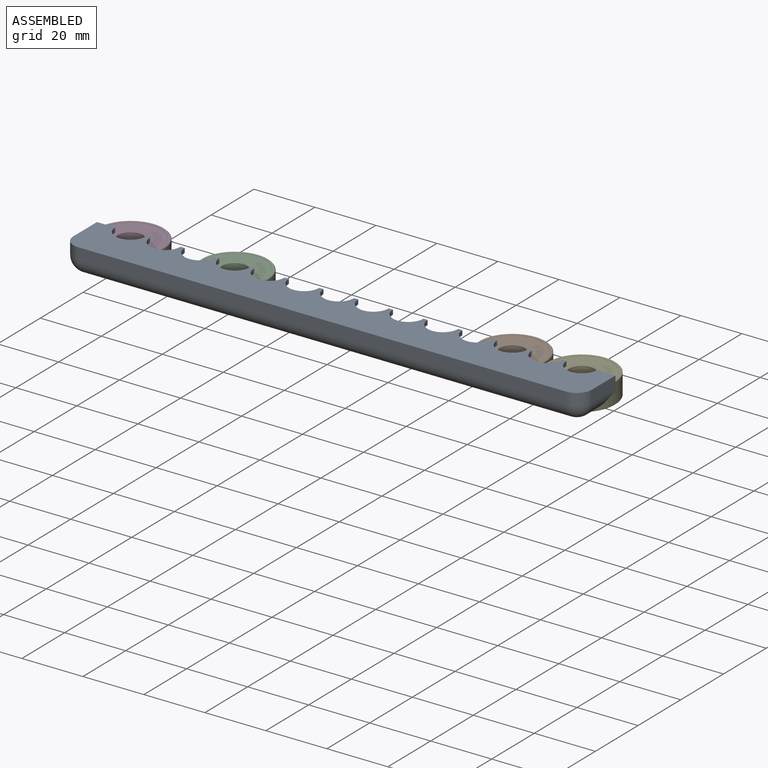
[diagram: assembled view]
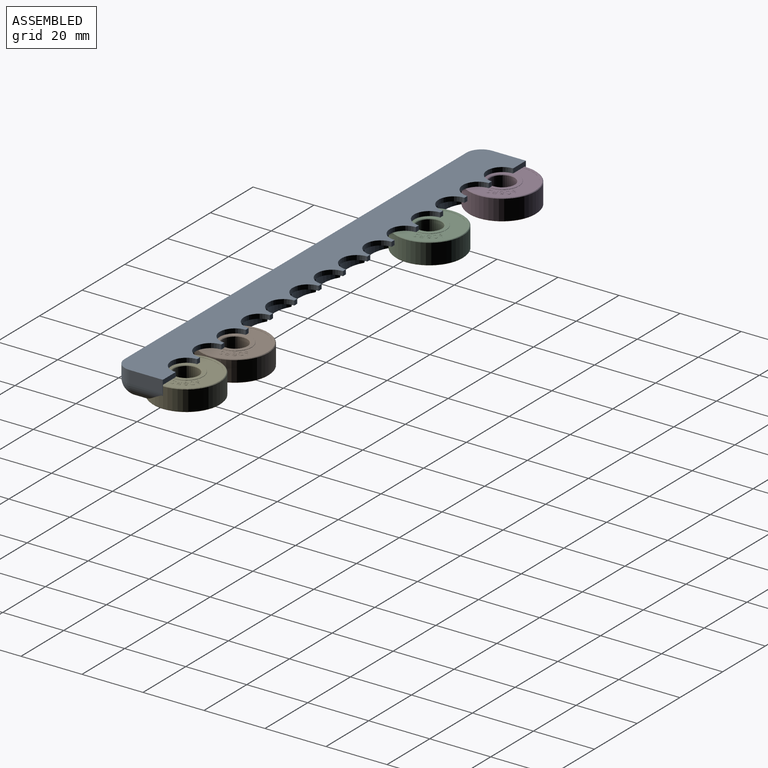
[diagram: assembled view, second angle]
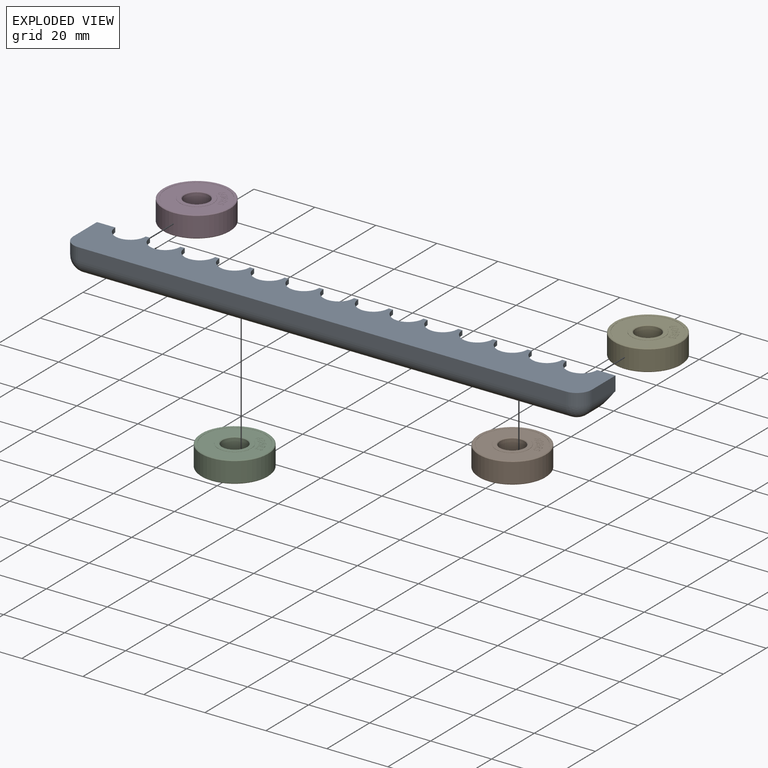
[diagram: exploded view]
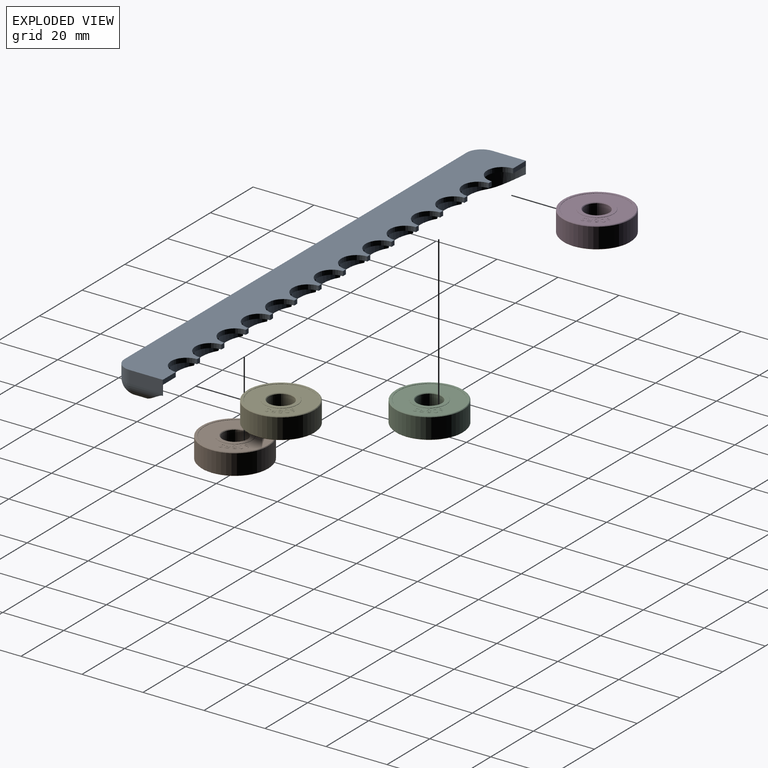
[diagram: exploded view, second angle]
ASSEMBLY  parts=5 mates=4
PART A: 70 faces, bbox 170x16x9 mm
  f0: plane 6x1.78mm, normal (0,0,-1), area 3.4mm2, adj f48,f66,f67
  f1: plane 11.38x1.59mm, normal (0,0,-1), area 5.8mm2, adj f48,f49,f66
  f2: plane 11.38x1.59mm, normal (0,0,-1), area 5.8mm2, adj f49,f50,f66
  f3: plane 11.38x1.59mm, normal (0,0,-1), area 5.8mm2, adj f50,f51,f66
  f4: plane 11.38x1.59mm, normal (0,0,-1), area 5.8mm2, adj f51,f52,f66
  f5: plane 11.38x1.59mm, normal (0,0,-1), area 5.8mm2, adj f52,f53,f66
  f6: plane 11.38x1.59mm, normal (0,0,-1), area 5.8mm2, adj f53,f54,f66
  f7: plane 11.38x1.59mm, normal (0,0,-1), area 5.8mm2, adj f54,f55,f66
  f8: plane 11.38x1.59mm, normal (0,0,-1), area 5.8mm2, adj f55,f56,f66
  f9: plane 11.38x1.59mm, normal (0,0,-1), area 5.8mm2, adj f56,f57,f66
  f10: plane 11.38x1.59mm, normal (0,0,-1), area 5.8mm2, adj f57,f58,f66
  f11: plane 11.38x1.59mm, normal (0,0,-1), area 5.8mm2, adj f58,f59,f66
  f12: plane 11.38x1.59mm, normal (0,0,-1), area 5.8mm2, adj f59,f60,f66
  f13: plane 11.38x1.59mm, normal (0,0,-1), area 5.8mm2, adj f60,f61,f66
  f14: plane 6.06x1.82mm, normal (0,0,-1), area 3.5mm2, adj f61,f64,f66
  f15: cylinder r=5mm len=10mm, axis (0,0,-1), area 23.6mm2, adj f16,f46,f47,f62
  f16: plane 6x1.5mm, normal (0,1,0), area 9mm2, adj f15,f17,f47,f62
  f17: plane 11x4mm, normal (-1,0,0), area 44mm2, adj f16,f47,f48,f67,f69
  f18: plane 160x4mm, normal (0,-1,0), area 640mm2, adj f47,f63,f66,f69
  f19: plane 11x4mm, normal (1,0,0), area 44mm2, adj f20,f47,f63,f64
  f20: plane 6.06x4.77mm, normal (0,1,0), area 9.3mm2, adj f19,f21,f47,f61,f62,f64
  f21: cylinder r=5mm len=10mm, axis (0,0,-1), area 23.6mm2, adj f20,f22,f47,f62
  f22: plane 1.5x1.38mm, normal (0,1,0), area 2.1mm2, adj f21,f23,f47,f62
  f23: cylinder r=5mm len=10mm, axis (0,0,-1), area 23.6mm2, adj f22,f24,f47,f62
  f24: plane 1.5x1.38mm, normal (0,1,0), area 2.1mm2, adj f23,f25,f47,f62
  f25: cylinder r=5mm len=10mm, axis (0,0,-1), area 23.6mm2, adj f24,f26,f47,f62
  f26: plane 1.5x1.38mm, normal (0,1,0), area 2.1mm2, adj f25,f27,f47,f62
  f27: cylinder r=5mm len=10mm, axis (0,0,-1), area 23.6mm2, adj f26,f28,f47,f62
  f28: plane 1.5x1.38mm, normal (0,1,0), area 2.1mm2, adj f27,f29,f47,f62
  f29: cylinder r=5mm len=10mm, axis (0,0,-1), area 23.6mm2, adj f28,f30,f47,f62
  f30: plane 1.5x1.38mm, normal (0,1,0), area 2.1mm2, adj f29,f31,f47,f62
  f31: cylinder r=5mm len=10mm, axis (0,0,-1), area 23.6mm2, adj f30,f32,f47,f62
  f32: plane 1.5x1.38mm, normal (0,1,0), area 2.1mm2, adj f31,f33,f47,f62
  f33: cylinder r=5mm len=10mm, axis (0,0,-1), area 23.6mm2, adj f32,f34,f47,f62
  f34: plane 1.5x1.38mm, normal (0,1,0), area 2.1mm2, adj f33,f35,f47,f62
  f35: cylinder r=5mm len=10mm, axis (0,0,-1), area 23.6mm2, adj f34,f36,f47,f62
  f36: plane 1.5x1.38mm, normal (0,1,0), area 2.1mm2, adj f35,f37,f47,f62
  f37: cylinder r=5mm len=10mm, axis (0,0,-1), area 23.6mm2, adj f36,f38,f47,f62
  f38: plane 1.5x1.38mm, normal (0,1,0), area 2.1mm2, adj f37,f39,f47,f62
  f39: cylinder r=5mm len=10mm, axis (0,0,-1), area 23.6mm2, adj f38,f40,f47,f62
  f40: plane 1.5x1.38mm, normal (0,1,0), area 2.1mm2, adj f39,f41,f47,f62
  f41: cylinder r=5mm len=10mm, axis (0,0,-1), area 23.6mm2, adj f40,f42,f47,f62
  f42: plane 1.5x1.38mm, normal (0,1,0), area 2.1mm2, adj f41,f43,f47,f62
  f43: cylinder r=5mm len=10mm, axis (0,0,-1), area 23.6mm2, adj f42,f44,f47,f62
  f44: plane 1.5x1.38mm, normal (0,1,0), area 2.1mm2, adj f43,f45,f47,f62
  f45: cylinder r=5mm len=10mm, axis (0,0,-1), area 23.6mm2, adj f44,f46,f47,f62
  f46: plane 1.5x1.38mm, normal (0,1,0), area 2.1mm2, adj f15,f45,f47,f62
  f47: plane 170x16mm, normal (0,0,1), area 2159.5mm2, adj f15,f16,f17,f18,f19,f20,f21,f22
  f48: cylinder r=11mm len=16.69mm, axis (0,0,-1), area 153.7mm2, adj f0,f1,f17,f49,f62,f67
  f49: cylinder r=11mm len=11.38mm, axis (0,0,-1), area 89.7mm2, adj f1,f2,f48,f50,f62
  f50: cylinder r=11mm len=11.38mm, axis (0,0,-1), area 89.7mm2, adj f2,f3,f49,f51,f62
  f51: cylinder r=11mm len=11.38mm, axis (0,0,-1), area 89.7mm2, adj f3,f4,f50,f52,f62
  f52: cylinder r=11mm len=11.38mm, axis (0,0,-1), area 89.7mm2, adj f4,f5,f51,f53,f62
  f53: cylinder r=11mm len=11.38mm, axis (0,0,-1), area 89.7mm2, adj f5,f6,f52,f54,f62
  f54: cylinder r=11mm len=11.38mm, axis (0,0,-1), area 89.7mm2, adj f6,f7,f53,f55,f62
  f55: cylinder r=11mm len=11.38mm, axis (0,0,-1), area 89.7mm2, adj f7,f8,f54,f56,f62
  f56: cylinder r=11mm len=11.38mm, axis (0,0,-1), area 89.7mm2, adj f8,f9,f55,f57,f62
  f57: cylinder r=11mm len=11.38mm, axis (0,0,-1), area 89.7mm2, adj f9,f10,f56,f58,f62
  f58: cylinder r=11mm len=11.38mm, axis (0,0,-1), area 89.7mm2, adj f10,f11,f57,f59,f62
  f59: cylinder r=11mm len=11.38mm, axis (0,0,-1), area 89.7mm2, adj f11,f12,f58,f60,f62
  f60: cylinder r=11mm len=11.38mm, axis (0,0,-1), area 89.7mm2, adj f12,f13,f59,f61,f62
  f61: cylinder r=11mm len=16.69mm, axis (0,0,-1), area 155mm2, adj f13,f14,f20,f60,f62,f64
  f62: plane 169.94x11mm, normal (0,0,-1), area 1191.8mm2, adj f15,f16,f20,f21,f22,f23,f24,f25
  f63: cylinder r=5mm len=5mm, axis (0,0,1), area 31.4mm2, adj f18,f19,f47,f65
  f64: cylinder r=5mm len=11mm, axis (0,1,0), area 47.2mm2, adj f14,f19,f20,f61,f65
  f65: sphere r=5mm, area 39.3mm2, adj f63,f64,f66
  f66: cylinder r=5mm len=160mm, axis (1,0,0), area 1256.6mm2, adj f0,f1,f2,f3,f4,f5,f6,f7
  f67: cylinder r=5mm len=11mm, axis (0,-1,0), area 45.7mm2, adj f0,f17,f48,f68
  f68: sphere r=5mm, area 39.3mm2, adj f66,f67,f69
  f69: cylinder r=5mm len=5mm, axis (0,0,-1), area 31.4mm2, adj f17,f18,f47,f68
PART B: 182 faces, bbox 22x7x22 mm
  f0: plane 20x20mm, normal (0,-1,0), area 210.8mm2, adj f8,f9,f101,f102,f103,f104,f105,f106
  f1: plane 20x20mm, normal (0,1,0), area 210.8mm2, adj f10,f11,f20,f21,f22,f23,f24,f25
  f2: plane 10.9x10.9mm, normal (0,1,0), area 37.9mm2, adj f12,f19
  f3: plane 10.9x10.9mm, normal (0,-1,0), area 37.9mm2, adj f13,f16
  f4: plane 21.6x21.6mm, normal (0,-1,0), area 49.1mm2, adj f14,f17
  f5: plane 21.6x21.6mm, normal (0,1,0), area 49.1mm2, adj f15,f18
  f6: cylinder r=11mm len=22mm, axis (0,1,0), area 456.2mm2, adj f14,f15
  f7: cylinder r=4mm len=8mm, axis (0,1,0), area 165.9mm2, adj f12,f13
  f8: cylinder r=10mm len=20mm, axis (0,-1,0), area 3.1mm2, adj f0,f17
  f9: cylinder r=5.5mm len=11mm, axis (0,-1,0), area 1.7mm2, adj f0,f16
  f10: cylinder r=10mm len=20mm, axis (0,-1,0), area 3.1mm2, adj f1,f18
  f11: cylinder r=5.5mm len=11mm, axis (0,-1,0), area 1.7mm2, adj f1,f19
  f12: cone r=4.2mm half-angle=45deg, axis (0,1,0), area 7.3mm2, adj f2,f7
  f13: cone r=4mm half-angle=45deg, axis (0,-1,0), area 7.3mm2, adj f3,f7
  f14: cone r=10.8mm half-angle=45deg, axis (0,1,0), area 19.4mm2, adj f4,f6
  f15: cone r=11mm half-angle=45deg, axis (0,-1,0), area 19.4mm2, adj f5,f6
  f16: cone r=5.45mm half-angle=45deg, axis (0,1,0), area 2.4mm2, adj f3,f9
  f17: cone r=10mm half-angle=45deg, axis (0,-1,0), area 4.5mm2, adj f4,f8
  f18: cone r=10.05mm half-angle=45deg, axis (0,1,0), area 4.5mm2, adj f5,f10
  f19: cone r=5.5mm half-angle=45deg, axis (0,-1,0), area 2.4mm2, adj f2,f11
  f20: extruded ~0.64x0.36mm, area 0mm2, adj f1,f21,f36,f37
  f21: extruded ~0.59x0.51mm, area 0mm2, adj f1,f20,f22,f37
  f22: extruded ~0.59x0.51mm, area 0mm2, adj f1,f21,f23,f37
  f23: cylinder r=4.18mm len=0.28mm, axis (0,1,0), area 0mm2, adj f1,f22,f24,f37
  f24: extruded ~0.24x0.15mm, area 0mm2, adj f1,f23,f25,f37
  f25: extruded ~0.28x0.25mm, area 0mm2, adj f1,f24,f26,f37
  f26: extruded ~0.38x0.21mm, area 0mm2, adj f1,f25,f27,f37
  f27: plane 0.15x0.14mm, normal (0.73,0,-0.68), area 0mm2, adj f1,f26,f28,f37
  f28: extruded ~0.55x0.27mm, area 0mm2, adj f1,f27,f29,f37
  f29: extruded ~0.51x0.43mm, area 0mm2, adj f1,f28,f30,f37
  f30: cylinder r=0.5mm len=0.29mm, axis (0,-1,0), area 0mm2, adj f1,f29,f31,f37
  f31: extruded ~0.33x0.24mm, area 0mm2, adj f1,f30,f32,f37
  f32: extruded ~0.37x0.28mm, area 0mm2, adj f1,f31,f33,f37
  f33: cylinder r=0.34mm len=0.19mm, axis (0,1,0), area 0mm2, adj f1,f32,f34,f37
  f34: extruded ~0.37x0.33mm, area 0mm2, adj f1,f33,f35,f37
  f35: extruded ~0.44x0.29mm, area 0mm2, adj f1,f34,f36,f37
  f36: plane 0.16x0.12mm, normal (-0.8,0,0.6), area 0mm2, adj f1,f20,f35,f37
  f37: plane 2.08x1.14mm, normal (0,1,0), area 0.8mm2, adj f20,f21,f22,f23,f24,f25,f26,f27
  f38: plane 2.13x1.84mm, normal (0,1,0), area 1.1mm2, adj f39,f40,f41,f42,f43,f44,f45,f46
  f39: plane 1.88x0.64mm, normal (0.32,0,0.95), area 0.1mm2, adj f1,f38,f40,f49
  f40: plane 0.19x0.06mm, normal (0.95,0,-0.32), area 0mm2, adj f1,f38,f39,f41
  f41: plane 0.87x0.3mm, normal (-0.32,0,-0.95), area 0mm2, adj f1,f38,f40,f42
  f42: plane 0.11x0.05mm, normal (0.95,0,-0.32), area 0mm2, adj f1,f38,f41,f43
  f43: plane 0.97x0.65mm, normal (0.83,0,0.55), area 0.1mm2, adj f1,f38,f42,f44
  f44: plane 0.23x0.08mm, normal (0.95,0,-0.32), area 0mm2, adj f1,f38,f43,f45
  f45: plane 0.97x0.64mm, normal (-0.83,0,-0.55), area 0.1mm2, adj f1,f38,f44,f46
  f46: extruded ~0.73x0.51mm, area 0mm2, adj f1,f38,f45,f47
  f47: extruded ~0.54x0.35mm, area 0mm2, adj f1,f38,f46,f48
  f48: extruded ~0.43x0.12mm, area 0mm2, adj f1,f38,f47,f49
  f49: plane 0.37x0.13mm, normal (-0.95,0,0.32), area 0mm2, adj f1,f38,f39,f48
  f50: plane 0.33x0.11mm, normal (0.95,0,-0.32), area 0mm2, adj f38,f51,f54,f55
  f51: plane 0.64x0.22mm, normal (-0.32,0,-0.95), area 0mm2, adj f38,f50,f52,f55
  f52: plane 0.32x0.11mm, normal (-0.95,0,0.31), area 0mm2, adj f38,f51,f53,f55
  f53: extruded ~0.48x0.38mm, area 0mm2, adj f38,f52,f54,f55
  f54: extruded ~0.57x0.22mm, area 0mm2, adj f38,f50,f53,f55
  f55: plane 0.92x0.81mm, normal (0,1,0), area 0.5mm2, adj f50,f51,f52,f53,f54
  f56: plane 1.99x1.76mm, normal (0,1,0), area 1.1mm2, adj f57,f58,f59,f60,f61,f62,f63,f64
  f57: extruded ~0.51x0.08mm, area 0mm2, adj f1,f56,f58,f65
  f58: extruded ~0.77x0.22mm, area 0mm2, adj f1,f56,f57,f59
  f59: extruded ~0.76x0.28mm, area 0mm2, adj f1,f56,f58,f60
  f60: extruded ~0.48x0.2mm, area 0mm2, adj f1,f56,f59,f61
  f61: extruded ~0.66x0.11mm, area 0mm2, adj f1,f56,f60,f62
  f62: extruded ~0.9x0.27mm, area 0.1mm2, adj f1,f56,f61,f63
  f63: extruded ~0.47x0.32mm, area 0mm2, adj f1,f56,f62,f64
  f64: cylinder r=0.61mm len=0.42mm, axis (0,-1,0), area 0mm2, adj f1,f56,f63,f65
  f65: extruded ~0.6x0.23mm, area 0mm2, adj f1,f56,f57,f64
  f66: extruded ~0.5x0.14mm, area 0mm2, adj f56,f67,f69,f74
  f67: extruded ~0.49x0.18mm, area 0mm2, adj f56,f66,f68,f74
  f68: extruded ~0.52x0.14mm, area 0mm2, adj f56,f67,f69,f74
  f69: extruded ~0.5x0.17mm, area 0mm2, adj f56,f66,f68,f74
  f70: extruded ~0.62x0.18mm, area 0mm2, adj f56,f71,f73,f75
  f71: extruded ~0.64x0.23mm, area 0mm2, adj f56,f70,f72,f75
  f72: extruded ~0.62x0.18mm, area 0mm2, adj f56,f71,f73,f75
  f73: extruded ~0.62x0.23mm, area 0mm2, adj f56,f70,f72,f75
  f74: plane 0.74x0.71mm, normal (0,1,0), area 0.4mm2, adj f66,f67,f68,f69
  f75: plane 0.92x0.9mm, normal (0,1,0), area 0.6mm2, adj f70,f71,f72,f73
  f76: plane 1.86x1.81mm, normal (0,1,0), area 1mm2, adj f77,f78,f79,f80,f81,f82,f83,f84
  f77: extruded ~1.23x0.41mm, area 0.1mm2, adj f1,f76,f78,f80
  f78: extruded ~1.22x0.46mm, area 0.1mm2, adj f1,f76,f77,f79
  f79: extruded ~1.24x0.4mm, area 0.1mm2, adj f1,f76,f78,f80
  f80: extruded ~1.21x0.48mm, area 0.1mm2, adj f1,f76,f77,f79
  f81: extruded ~0.95x0.41mm, area 0.1mm2, adj f76,f82,f85,f86
  f82: extruded ~0.97x0.36mm, area 0.1mm2, adj f76,f81,f83,f86
  f83: extruded ~0.55x0.11mm, area 0mm2, adj f76,f82,f84,f86
  f84: extruded ~0.4x0.33mm, area 0mm2, adj f76,f83,f85,f86
  f85: extruded ~0.98x0.35mm, area 0.1mm2, adj f76,f81,f84,f86
  f86: plane 1.49x1.43mm, normal (0,1,0), area 1.4mm2, adj f81,f82,f83,f84,f85
  f87: plane 1.79x1.61mm, normal (0,1,0), area 0.8mm2, adj f88,f89,f90,f91,f92,f93,f94,f95
  f88: plane 0.96x0.49mm, normal (0.46,0,0.89), area 0.1mm2, adj f1,f87,f89,f95
  f89: extruded ~0.48x0.4mm, area 0mm2, adj f1,f87,f88,f90
  f90: extruded ~0.82x0.31mm, area 0mm2, adj f1,f87,f89,f91
  f91: extruded ~0.84x0.31mm, area 0mm2, adj f1,f87,f90,f92
  f92: extruded ~0.79x0.29mm, area 0mm2, adj f1,f87,f91,f93
  f93: cylinder r=0.63mm len=0.19mm, axis (0,-1,0), area 0mm2, adj f1,f87,f92,f94
  f94: plane 0.86x0.45mm, normal (-0.46,0,-0.89), area 0mm2, adj f1,f87,f93,f95
  f95: plane 0.17x0.09mm, normal (-0.88,0,0.47), area 0mm2, adj f1,f87,f88,f94
  f96: extruded ~0.57x0.22mm, area 0mm2, adj f87,f97,f99,f100
  f97: cylinder r=0.41mm len=0.57mm, axis (0,1,0), area 0mm2, adj f87,f96,f98,f100
  f98: cylinder r=0.41mm len=0.57mm, axis (0,1,0), area 0mm2, adj f87,f97,f99,f100
  f99: cylinder r=0.42mm len=0.57mm, axis (0,1,0), area 0mm2, adj f87,f96,f98,f100
  f100: plane 0.83x0.83mm, normal (0,1,0), area 0.5mm2, adj f96,f97,f98,f99
  f101: extruded ~0.64x0.36mm, area 0mm2, adj f0,f102,f117,f118
  f102: extruded ~0.59x0.51mm, area 0mm2, adj f0,f101,f103,f118
  f103: extruded ~0.59x0.51mm, area 0mm2, adj f0,f102,f104,f118
  f104: cylinder r=4.18mm len=0.28mm, axis (0,-1,0), area 0mm2, adj f0,f103,f105,f118
  f105: extruded ~0.24x0.15mm, area 0mm2, adj f0,f104,f106,f118
  f106: extruded ~0.28x0.25mm, area 0mm2, adj f0,f105,f107,f118
  f107: extruded ~0.38x0.21mm, area 0mm2, adj f0,f106,f108,f118
  f108: plane 0.15x0.14mm, normal (-0.73,0,-0.68), area 0mm2, adj f0,f107,f109,f118
  f109: extruded ~0.55x0.27mm, area 0mm2, adj f0,f108,f110,f118
  f110: extruded ~0.51x0.43mm, area 0mm2, adj f0,f109,f111,f118
  f111: cylinder r=0.5mm len=0.29mm, axis (0,1,0), area 0mm2, adj f0,f110,f112,f118
  f112: extruded ~0.33x0.24mm, area 0mm2, adj f0,f111,f113,f118
  f113: extruded ~0.37x0.28mm, area 0mm2, adj f0,f112,f114,f118
  f114: cylinder r=0.34mm len=0.19mm, axis (0,-1,0), area 0mm2, adj f0,f113,f115,f118
  f115: extruded ~0.37x0.33mm, area 0mm2, adj f0,f114,f116,f118
  f116: extruded ~0.44x0.29mm, area 0mm2, adj f0,f115,f117,f118
  f117: plane 0.16x0.12mm, normal (0.8,0,0.6), area 0mm2, adj f0,f101,f116,f118
  f118: plane 2.08x1.14mm, normal (0,-1,0), area 0.8mm2, adj f101,f102,f103,f104,f105,f106,f107,f108
  f119: plane 2.13x1.84mm, normal (0,-1,0), area 1.1mm2, adj f120,f121,f122,f123,f124,f125,f126,f127
  f120: plane 1.88x0.64mm, normal (-0.32,0,0.95), area 0.1mm2, adj f0,f119,f121,f130
  f121: plane 0.19x0.06mm, normal (-0.95,0,-0.32), area 0mm2, adj f0,f119,f120,f122
  f122: plane 0.87x0.3mm, normal (0.32,0,-0.95), area 0mm2, adj f0,f119,f121,f123
  f123: plane 0.11x0.05mm, normal (-0.95,0,-0.32), area 0mm2, adj f0,f119,f122,f124
  f124: plane 0.97x0.65mm, normal (-0.83,0,0.55), area 0.1mm2, adj f0,f119,f123,f125
  f125: plane 0.23x0.08mm, normal (-0.95,0,-0.32), area 0mm2, adj f0,f119,f124,f126
  f126: plane 0.97x0.64mm, normal (0.83,0,-0.55), area 0.1mm2, adj f0,f119,f125,f127
  f127: extruded ~0.73x0.51mm, area 0mm2, adj f0,f119,f126,f128
  f128: extruded ~0.54x0.35mm, area 0mm2, adj f0,f119,f127,f129
  f129: extruded ~0.43x0.12mm, area 0mm2, adj f0,f119,f128,f130
  f130: plane 0.37x0.13mm, normal (0.95,0,0.32), area 0mm2, adj f0,f119,f120,f129
  f131: plane 0.33x0.11mm, normal (-0.95,0,-0.32), area 0mm2, adj f119,f132,f135,f136
  f132: plane 0.64x0.22mm, normal (0.32,0,-0.95), area 0mm2, adj f119,f131,f133,f136
  f133: plane 0.32x0.11mm, normal (0.95,0,0.31), area 0mm2, adj f119,f132,f134,f136
  f134: extruded ~0.48x0.38mm, area 0mm2, adj f119,f133,f135,f136
  f135: extruded ~0.57x0.22mm, area 0mm2, adj f119,f131,f134,f136
  f136: plane 0.92x0.81mm, normal (0,-1,0), area 0.5mm2, adj f131,f132,f133,f134,f135
  f137: plane 1.99x1.76mm, normal (0,-1,0), area 1.1mm2, adj f138,f139,f140,f141,f142,f143,f144,f145
  f138: extruded ~0.51x0.08mm, area 0mm2, adj f0,f137,f139,f146
  f139: extruded ~0.77x0.22mm, area 0mm2, adj f0,f137,f138,f140
  f140: extruded ~0.76x0.28mm, area 0mm2, adj f0,f137,f139,f141
  f141: extruded ~0.48x0.2mm, area 0mm2, adj f0,f137,f140,f142
  f142: extruded ~0.66x0.11mm, area 0mm2, adj f0,f137,f141,f143
  f143: extruded ~0.9x0.27mm, area 0.1mm2, adj f0,f137,f142,f144
  f144: extruded ~0.47x0.32mm, area 0mm2, adj f0,f137,f143,f145
  f145: cylinder r=0.61mm len=0.42mm, axis (0,1,0), area 0mm2, adj f0,f137,f144,f146
  f146: extruded ~0.6x0.23mm, area 0mm2, adj f0,f137,f138,f145
  f147: extruded ~0.5x0.14mm, area 0mm2, adj f137,f148,f150,f156
  f148: extruded ~0.49x0.18mm, area 0mm2, adj f137,f147,f149,f156
  f149: extruded ~0.52x0.14mm, area 0mm2, adj f137,f148,f150,f156
  f150: extruded ~0.5x0.17mm, area 0mm2, adj f137,f147,f149,f156
  f151: extruded ~0.62x0.18mm, area 0mm2, adj f137,f152,f154,f155
  f152: extruded ~0.64x0.23mm, area 0mm2, adj f137,f151,f153,f155
  f153: extruded ~0.62x0.18mm, area 0mm2, adj f137,f152,f154,f155
  f154: extruded ~0.62x0.23mm, area 0mm2, adj f137,f151,f153,f155
  f155: plane 0.92x0.9mm, normal (0,-1,0), area 0.6mm2, adj f151,f152,f153,f154
  f156: plane 0.74x0.71mm, normal (0,-1,0), area 0.4mm2, adj f147,f148,f149,f150
  f157: plane 1.86x1.81mm, normal (0,-1,0), area 1mm2, adj f158,f159,f160,f161,f162,f163,f164,f165
  f158: extruded ~1.23x0.41mm, area 0.1mm2, adj f0,f157,f159,f161
  f159: extruded ~1.22x0.46mm, area 0.1mm2, adj f0,f157,f158,f160
  f160: extruded ~1.24x0.4mm, area 0.1mm2, adj f0,f157,f159,f161
  f161: extruded ~1.21x0.48mm, area 0.1mm2, adj f0,f157,f158,f160
  f162: extruded ~0.95x0.41mm, area 0.1mm2, adj f157,f163,f166,f167
  f163: extruded ~0.97x0.36mm, area 0.1mm2, adj f157,f162,f164,f167
  f164: extruded ~0.55x0.11mm, area 0mm2, adj f157,f163,f165,f167
  f165: extruded ~0.4x0.33mm, area 0mm2, adj f157,f164,f166,f167
  f166: extruded ~0.98x0.35mm, area 0.1mm2, adj f157,f162,f165,f167
  f167: plane 1.49x1.43mm, normal (0,-1,0), area 1.4mm2, adj f162,f163,f164,f165,f166
  f168: plane 1.79x1.61mm, normal (0,-1,0), area 0.8mm2, adj f169,f170,f171,f172,f173,f174,f175,f176
  f169: plane 0.96x0.49mm, normal (-0.46,0,0.89), area 0.1mm2, adj f0,f168,f170,f176
  f170: extruded ~0.48x0.4mm, area 0mm2, adj f0,f168,f169,f171
  f171: extruded ~0.82x0.31mm, area 0mm2, adj f0,f168,f170,f172
  f172: extruded ~0.84x0.31mm, area 0mm2, adj f0,f168,f171,f173
  f173: extruded ~0.79x0.29mm, area 0mm2, adj f0,f168,f172,f174
  f174: cylinder r=0.63mm len=0.19mm, axis (0,1,0), area 0mm2, adj f0,f168,f173,f175
  f175: plane 0.86x0.45mm, normal (0.46,0,-0.89), area 0mm2, adj f0,f168,f174,f176
  f176: plane 0.17x0.09mm, normal (0.88,0,0.47), area 0mm2, adj f0,f168,f169,f175
  f177: extruded ~0.57x0.22mm, area 0mm2, adj f168,f178,f180,f181
  f178: cylinder r=0.41mm len=0.57mm, axis (0,-1,0), area 0mm2, adj f168,f177,f179,f181
  f179: cylinder r=0.41mm len=0.57mm, axis (0,-1,0), area 0mm2, adj f168,f178,f180,f181
  f180: cylinder r=0.42mm len=0.57mm, axis (0,-1,0), area 0mm2, adj f168,f177,f179,f181
  f181: plane 0.83x0.83mm, normal (0,-1,0), area 0.5mm2, adj f177,f178,f179,f180
PART C: same geometry as B
PART D: same geometry as B
PART E: same geometry as B
PLACE A at identity
PLACE B rot(axis=(-1,0,0),90deg) t=(51.18,8,0.25)mm
PLACE C rot(axis=(-1,0,0),90deg) t=(-39.86,8,0.25)mm
PLACE D rot(axis=(-1,0,0),90deg) t=(-74,8,0.25)mm
PLACE E rot(axis=(-1,0,0),90deg) t=(73.94,8,0.25)mm
MATE revolute C.f6 <-> A.f41  axis (0,0,-1) through (-39.86,8,3.75)mm
MATE revolute E.f6 <-> A.f21  axis (0,0,-1) through (73.94,8,3.75)mm
MATE revolute D.f6 <-> A.f15  axis (0,0,-1) through (-74,8,3.75)mm
MATE revolute B.f6 <-> A.f25  axis (0,0,-1) through (51.18,8,3.75)mm
